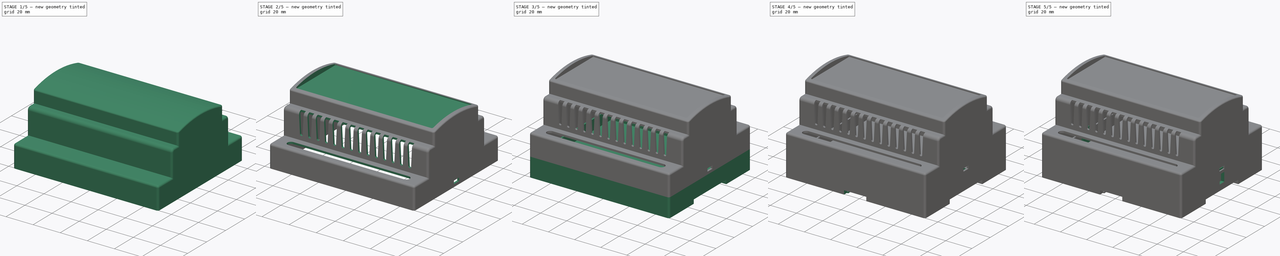
[diagram: build sequence overview — one tinted view per stage of 5, left to right]
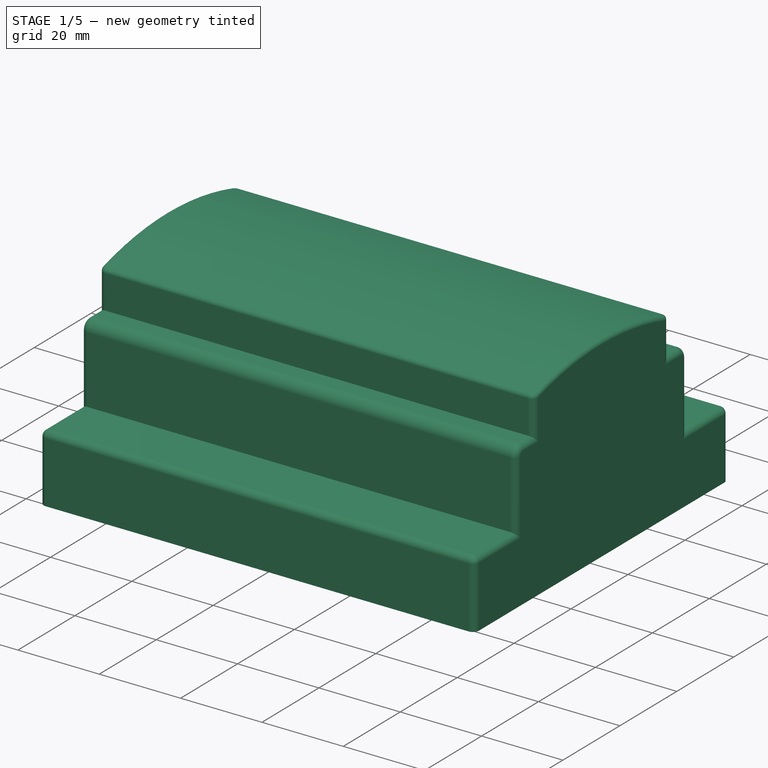
[diagram: stage 1 of 5 — iso view after this stage's code; geometry added in this stage tinted green]
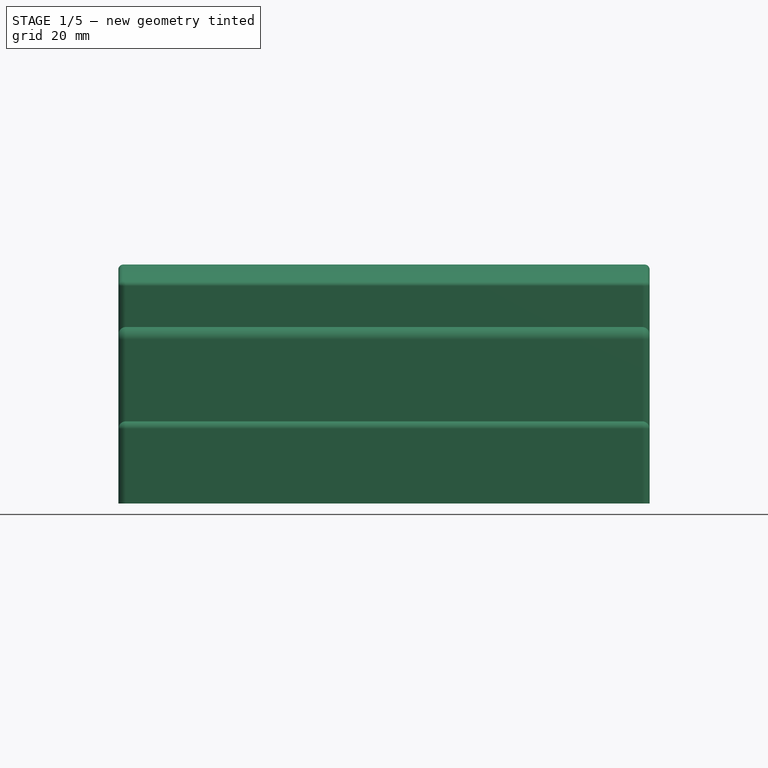
[diagram: stage 1 of 5 — front view after this stage's code; geometry added in this stage tinted green]
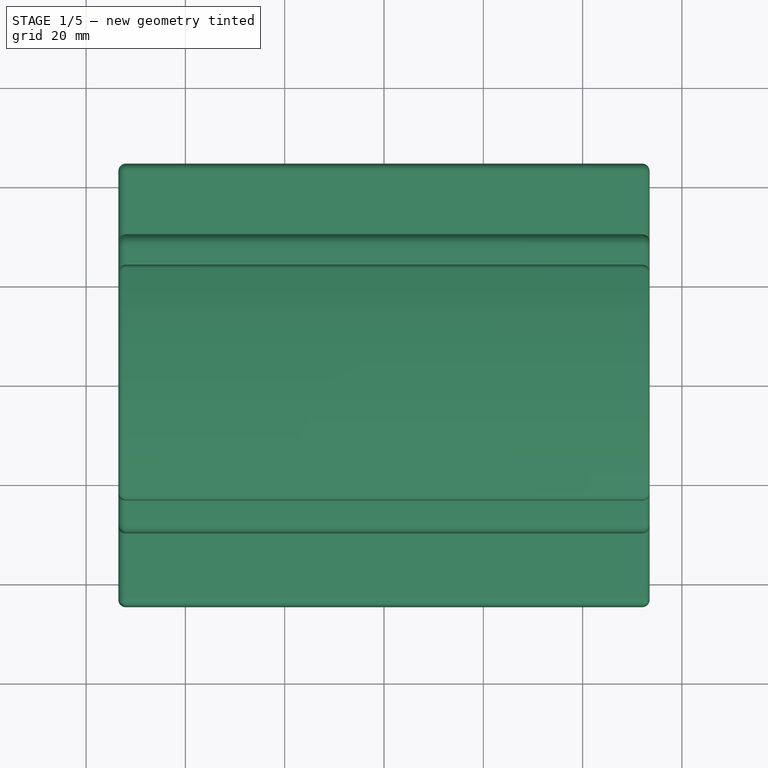
[diagram: stage 1 of 5 — top view after this stage's code; geometry added in this stage tinted green]
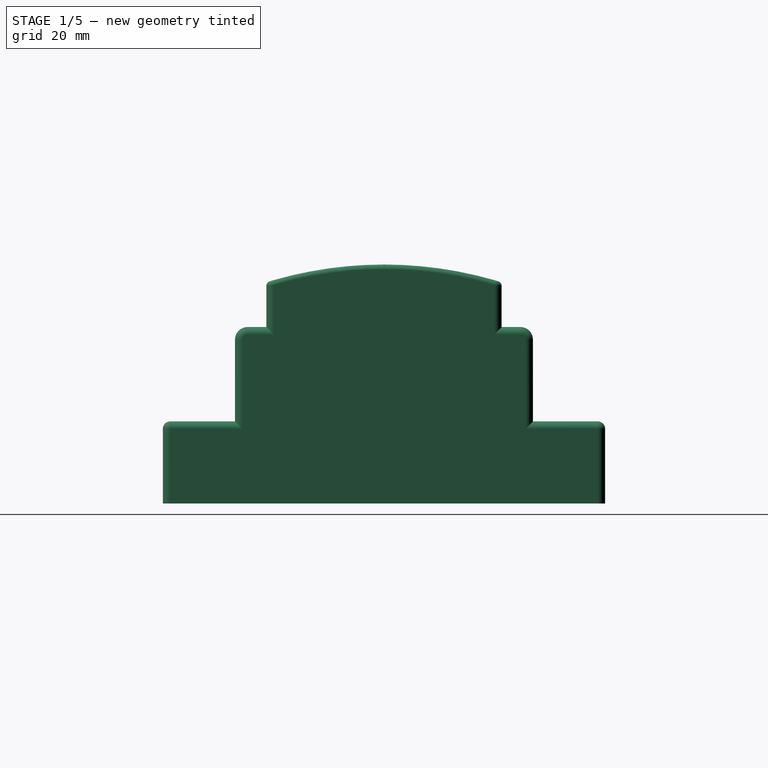
[diagram: stage 1 of 5 — right view after this stage's code; geometry added in this stage tinted green]
FCSTD DOCUMENT  (FreeCAD 1.0R39109 (Git))
Label: Practica Freecad
License: All rights reserved
LicenseURL: https://en.wikipedia.org/wiki/All_rights_reserved
objects: Sketcher::SketchObject×21, PartDesign::Pocket×14, PartDesign::Pad×7, PartDesign::Fillet×5, PartDesign::MultiTransform×4, PartDesign::Mirrored×2, PartDesign::Body×2, PartDesign::Thickness×1, PartDesign::LinearPattern×1
note: 139 computed .brp shape members not serialized (recipe doc carries the construction recipe); baked Part::Feature solids carry a one-line shape summary decoded from their .brp

FEATURE [Sketcher::SketchObject] Sketch
  ArcFitTolerance = 1e-06
  AttachmentSupport = -> [YZ_Plane]
  FullyConstrained = true
  MakeInternals = false
  MapMode = 5
  Placement = pos=(0,0,0) rot=(0.57735,0.57735,0.57735;2.0944rad)
  sketch-geometry (14):
    g0: LineSegment StartX=0 StartY=43.14 StartZ=0 EndX=22.3 EndY=43.14 EndZ=0
    g1: LineSegment StartX=22.3 StartY=43.14 StartZ=0 EndX=22.3 EndY=34.14 EndZ=0
    g2: LineSegment StartX=22.3 StartY=34.14 StartZ=0 EndX=28.6 EndY=34.14 EndZ=0
    g3: LineSegment StartX=28.6 StartY=34.14 StartZ=0 EndX=28.6 EndY=15.14 EndZ=0
    g4: LineSegment StartX=28.6 StartY=15.14 StartZ=0 EndX=43.15 EndY=15.14 EndZ=0
    g5: LineSegment StartX=43.15 StartY=15.14 StartZ=0 EndX=43.15 EndY=0 EndZ=0
    g6: LineSegment StartX=43.15 StartY=0 StartZ=0 EndX=0 EndY=0 EndZ=0
    g7: LineSegment StartX=0 StartY=43.14 StartZ=0 EndX=-22.3 EndY=43.14 EndZ=0
    g8: LineSegment StartX=-22.3 StartY=43.14 StartZ=0 EndX=-22.3 EndY=34.14 EndZ=0
    g9: LineSegment StartX=-22.3 StartY=34.14 StartZ=0 EndX=-28.6 EndY=34.14 EndZ=0
    g10: LineSegment StartX=-28.6 StartY=34.14 StartZ=0 EndX=-28.6 EndY=15.14 EndZ=0
    g11: LineSegment StartX=-28.6 StartY=15.14 StartZ=0 EndX=-43.15 EndY=15.14 EndZ=0
    g12: LineSegment StartX=-43.15 StartY=15.14 StartZ=0 EndX=-43.15 EndY=0 EndZ=0
    g13: LineSegment StartX=-43.15 StartY=0 StartZ=0 EndX=0 EndY=0 EndZ=0
  constraints (35):
    c: PointOnObject(g0,g-2)
    c: Horizontal(g0)
    c: Coincident(g0,g1)
    c: Vertical(g1)
    c: Coincident(g1,g2)
    c: Horizontal(g2)
    c: Coincident(g2,g3)
    c: Vertical(g3)
    c: Coincident(g3,g4)
    c: Horizontal(g4)
    c: Coincident(g4,g5)
    c: PointOnObject(g5,g-1)
    c: Vertical(g5)
    c: Coincident(g5,g6)
    c: Coincident(g6,g-1)
    c: DistanceY(g5,g5) = 15.14
    c: DistanceY(g-1,g2) = 34.14
    c: DistanceY(g-1,g0) = 43.14
    c: DistanceX(g-1,g1) = 22.3
    c: DistanceX(g-1,g3) = 28.6
    c: DistanceX(g-1,g4) = 43.15
    c: Symmetric(g0,g7,g-2)
    c: Symmetric(g1,g8,g-2)
    c: Symmetric(g1,g8,g-2)
    c: Symmetric(g2,g9,g-2)
    c: Symmetric(g2,g9,g-2)
    c: Symmetric(g3,g10,g-2)
    c: Symmetric(g3,g10,g-2)
    c: Symmetric(g4,g11,g-2)
    c: Symmetric(g4,g11,g-2)
    c: Symmetric(g5,g12,g-2)
    c: Symmetric(g5,g12,g-2)
    c: Symmetric(g6,g13,g-2)
    c: Coincident(g7,g0)
    c: Coincident(g13,g6)
FEATURE [PartDesign::Pad] Pad
  Direction = (1,0,0)
  Length = 104.2
  Length2 = 10
  Midplane = true
  Placement = pos=(0,0,0) rot=(1,1,1;2.0944rad)
  Profile = -> Sketch
  ReferenceAxis = -> Sketch [N_Axis]
  Refine = true
  Suppressed = false
  Type = 0
FEATURE [PartDesign::Thickness] Thickness
  Base = -> Pad [Face14]
  BaseFeature = -> Pad
  Intersection = false
  Join = 1
  Mode = 0
  Refine = true
  SupportTransform = false
  Suppressed = false
  Value = 1.4
FEATURE [Sketcher::SketchObject] Sketch001
  ArcFitTolerance = 1e-06
  AttachmentSupport = -> [Thickness]
  ExternalGeometry = -> [Thickness]
  FullyConstrained = true
  MakeInternals = false
  MapMode = 5
  Placement = pos=(53.5,0,0) rot=(0.57735,0.57735,0.57735;2.0944rad)
  sketch-geometry (2):
    g0: ArcOfCircle CenterX=-1.77e-14 CenterY=-31.8688 CenterZ=0 NormalX=0 NormalY=0 NormalZ=1 AngleXU=0 Radius=80 StartAngle=1.27003 EndAngle=1.87156
    g1: LineSegment StartX=23.7 StartY=44.54 StartZ=0 EndX=-23.7 EndY=44.54 EndZ=0
  constraints (5):
    c: Coincident(g0,g-4)
    c: Coincident(g0,g-3)
    c: Coincident(g1,g0)
    c: Coincident(g1,g0)
    c: Radius(g0) = 80
FEATURE [PartDesign::Pad] Pad001
  BaseFeature = -> Thickness
  Direction = (1,0,0)
  Length = 13
  Length2 = 10
  Profile = -> Sketch001
  ReferenceAxis = -> Sketch001 [N_Axis]
  Refine = true
  Suppressed = false
  Type = 3
  UpToFace = -> Thickness [Face20]
FEATURE [PartDesign::Fillet] Fillet
  Base = -> Pad001 [Edge6,Edge63]
  BaseFeature = -> Pad001
  Radius = 2.5
  Refine = true
  SupportTransform = false
  Suppressed = false
  UseAllEdges = false
FEATURE [PartDesign::Fillet] Fillet001
  Base = -> Fillet [Edge45,Edge35,Edge7,Edge10,Edge1,Edge5,Edge6,Edge12,Edge14,Edge16,Edge17,Edge15,Edge9,Edge11,Edge27,Edge29,Edge31,Edge32,Edge30,Edge28,Edge21,Edge4,Edge19,Edge22,Edge23,Edge24]
  BaseFeature = -> Fillet
  Radius = 1.5
  Refine = true
  SupportTransform = false
  Suppressed = false
  UseAllEdges = false
FEATURE [PartDesign::Fillet] Fillet002
  Base = -> Fillet001 [Edge14]
  BaseFeature = -> Fillet001
  Radius = 1
  Refine = true
  SupportTransform = false
  Suppressed = false
  UseAllEdges = false
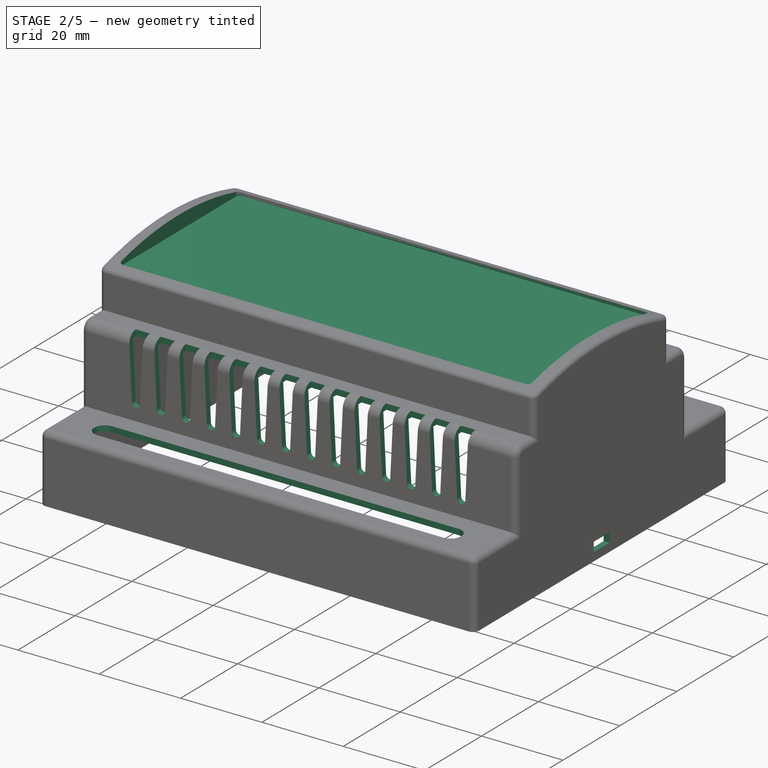
[diagram: stage 2 of 5 — iso view after this stage's code; geometry added in this stage tinted green]
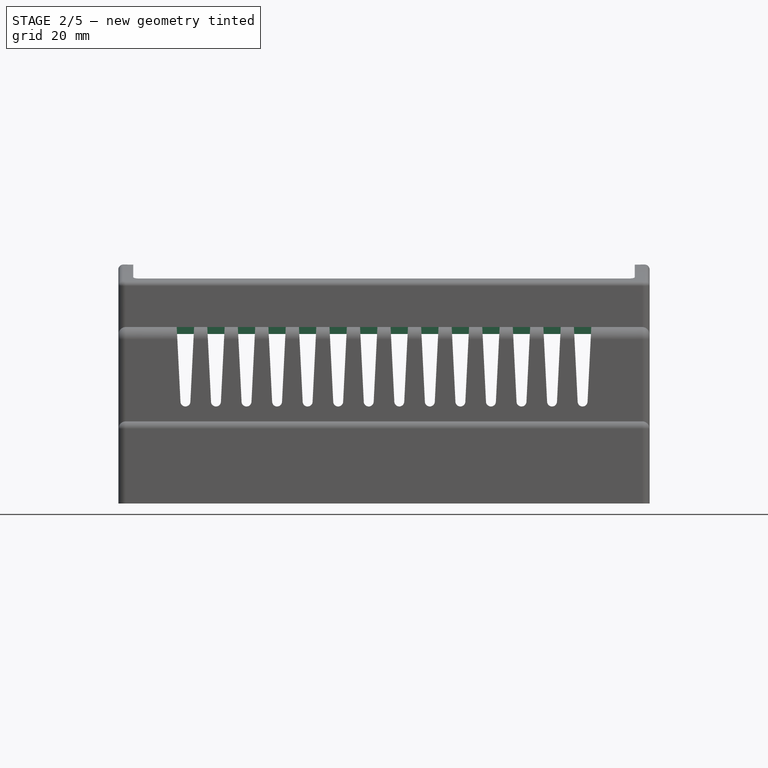
[diagram: stage 2 of 5 — front view after this stage's code; geometry added in this stage tinted green]
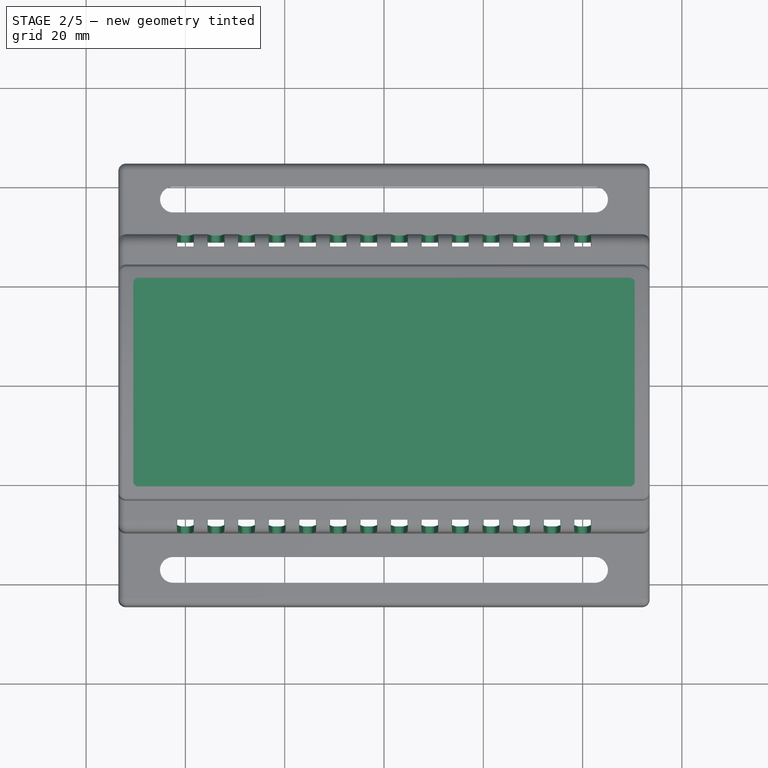
[diagram: stage 2 of 5 — top view after this stage's code; geometry added in this stage tinted green]
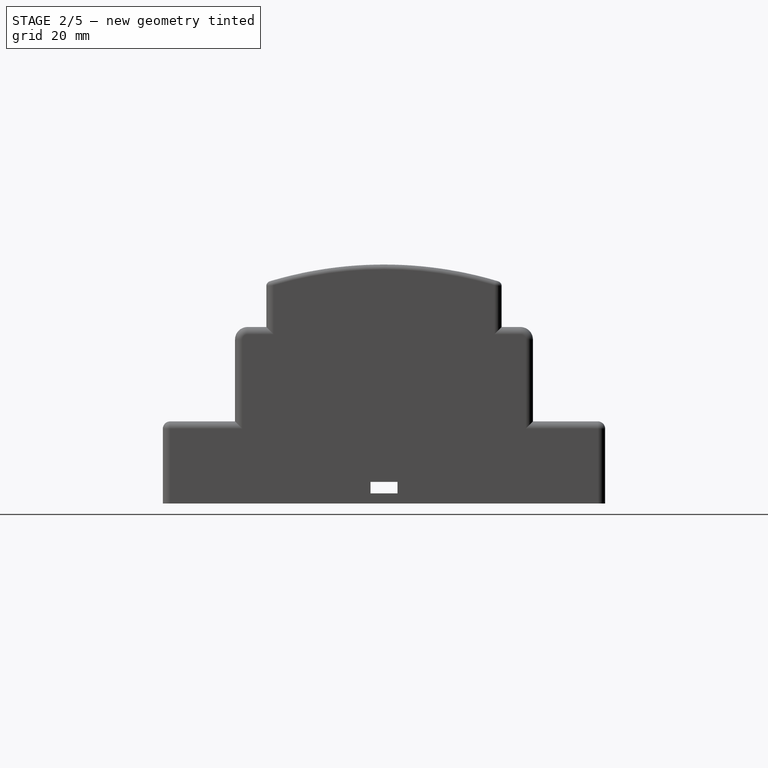
[diagram: stage 2 of 5 — right view after this stage's code; geometry added in this stage tinted green]
FEATURE [Sketcher::SketchObject] Sketch002
  ArcFitTolerance = 1e-06
  AttachmentOffset = pos=(0,0,44.54) rot=(0,0,1;0rad)
  AttachmentSupport = -> [XY_Plane]
  FullyConstrained = true
  MakeInternals = false
  MapMode = 5
  Placement = pos=(0,0,44.54) rot=(0,0,1;0rad)
  sketch-geometry (5):
    g0: LineSegment StartX=-50.5 StartY=21 StartZ=0 EndX=-50.5 EndY=-21 EndZ=0
    g1: LineSegment StartX=-50.5 StartY=-21 StartZ=0 EndX=50.5 EndY=-21 EndZ=0
    g2: LineSegment StartX=50.5 StartY=-21 StartZ=0 EndX=50.5 EndY=21 EndZ=0
    g3: LineSegment StartX=50.5 StartY=21 StartZ=0 EndX=-50.5 EndY=21 EndZ=0
    g4: GeomPoint [constr] X=0 Y=-8e-16 Z=0
  constraints (11):
    c: Coincident(g0,g1)
    c: Coincident(g1,g2)
    c: Coincident(g2,g3)
    c: Coincident(g3,g0)
    c: Vertical(g0)
    c: Horizontal(g1)
    c: Symmetric(g2,g0,g4)
    c: DistanceY(g2,g2) = 42
    c: DistanceX(g3,g3) = 101
    c: Symmetric(g2,g1,g-1)
    c: Symmetric(g2,g0,g-2)
FEATURE [PartDesign::Pocket] Pocket
  BaseFeature = -> Fillet002
  Direction = (0,0,-1)
  Length = 0
  Length2 = 5
  Profile = -> Sketch002
  ReferenceAxis = -> Sketch002 [N_Axis]
  Refine = true
  Suppressed = false
  Type = 3
  UpToFace = -> Fillet002 [Face9]
FEATURE [PartDesign::Fillet] Fillet003
  Base = -> Pocket [Edge111,Edge110,Edge115,Edge113]
  BaseFeature = -> Pocket
  Radius = 1
  Refine = true
  SupportTransform = false
  Suppressed = false
  UseAllEdges = false
FEATURE [Sketcher::SketchObject] Sketch003
  ArcFitTolerance = 1e-06
  AttachmentSupport = -> [Fillet003]
  FullyConstrained = false
  MakeInternals = false
  MapMode = 5
  Placement = pos=(0,3.6e-15,16.54) rot=(0,0,1;0rad)
  sketch-geometry (8):
    g0: ArcOfCircle CenterX=-42.5 CenterY=37.3 CenterZ=0 NormalX=0 NormalY=0 NormalZ=1 AngleXU=0 Radius=2.6 StartAngle=1.5708 EndAngle=4.71239
    g1: ArcOfCircle CenterX=42.5 CenterY=37.3 CenterZ=0 NormalX=0 NormalY=0 NormalZ=1 AngleXU=0 Radius=2.6 StartAngle=4.71239 EndAngle=7.85398
    g2: LineSegment StartX=-42.5 StartY=39.9 StartZ=0 EndX=42.5 EndY=39.9 EndZ=0
    g3: LineSegment StartX=-42.5 StartY=34.7 StartZ=0 EndX=42.5 EndY=34.7 EndZ=0
    g4: ArcOfCircle CenterX=-42.5147 CenterY=-37.3 CenterZ=0 NormalX=0 NormalY=0 NormalZ=1 AngleXU=0 Radius=2.6 StartAngle=1.5708 EndAngle=4.71239
    g5: ArcOfCircle CenterX=42.5 CenterY=-37.3 CenterZ=0 NormalX=0 NormalY=0 NormalZ=1 AngleXU=0 Radius=2.6 StartAngle=4.71239 EndAngle=7.85398
    g6: LineSegment StartX=-42.5147 StartY=-39.9 StartZ=0 EndX=42.5 EndY=-39.9 EndZ=0
    g7: LineSegment StartX=-42.5147 StartY=-34.7 StartZ=0 EndX=42.5 EndY=-34.7 EndZ=0
  constraints (17):
    c: Tangent(g0,g2) = 1.5708
    c: Tangent(g0,g3) = -1.5708
    c: Tangent(g1,g2) = 1.5708
    c: Tangent(g1,g3) = -1.5708
    c: Equal(g0,g1)
    c: Symmetric(g0,g1,g-2)
    c: DistanceX(g0,g1) = 85
    c: Distance(g3,g2) = 5.2
    c: Tangent(g4,g6) = -1.5708
    c: Tangent(g4,g7) = 1.5708
    c: Tangent(g5,g6) = -1.5708
    c: Tangent(g5,g7) = 1.5708
    c: Equal(g4,g5)
    c: Distance(g7,g6) = 5.2
    c: Horizontal(g4,g5)
    c: Symmetric(g5,g1,g-1)
    c: DistanceY(g5,g1) = 74.6
FEATURE [PartDesign::Pocket] Pocket001
  BaseFeature = -> Fillet003
  Direction = (0,0,-1)
  Length = 5
  Length2 = 5
  Profile = -> Sketch003
  ReferenceAxis = -> Sketch003 [N_Axis]
  Refine = true
  Suppressed = false
  Type = 0
FEATURE [Sketcher::SketchObject] Sketch004
  ArcFitTolerance = 1e-06
  AttachmentSupport = -> [Pocket001]
  ExternalGeometry = -> [Pocket001]
  FullyConstrained = false
  MakeInternals = false
  MapMode = 5
  Placement = pos=(-6.6e-15,-30,0) rot=(1,0,0;1.5708rad)
  sketch-geometry (5):
    g0: LineSegment [constr] StartX=40 StartY=20.54 StartZ=0 EndX=40 EndY=35.54 EndZ=0
    g1: LineSegment StartX=39.0004 StartY=20.5685 StartZ=0 EndX=38.25 EndY=35.54 EndZ=0
    g2: LineSegment StartX=38.25 StartY=35.54 StartZ=0 EndX=41.75 EndY=35.54 EndZ=0
    g3: LineSegment StartX=41.75 StartY=35.54 StartZ=0 EndX=40.999 EndY=20.4961 EndZ=0
    g4: ArcOfCircle CenterX=40 CenterY=20.54 CenterZ=0 NormalX=0 NormalY=0 NormalZ=1 AngleXU=0 Radius=1 StartAngle=3.11304 EndAngle=6.23922
  constraints (13):
    c: Vertical(g0)
    c: Coincident(g1,g2)
    c: Coincident(g2,g3)
    c: Coincident(g4,g0)
    c: Coincident(g4,g3)
    c: Coincident(g4,g1)
    c: Symmetric(g2,g1,g0)
    c: PointOnObject(g0,g2)
    c: PointOnObject(g1,g-3)
    c: Distance(g1,g-2) = 38.25
    c: DistanceX(g2,g2) = 3.5
    c: Radius(g4) = 1
    c: Distance(g0,g-3) = 15
FEATURE [PartDesign::Pocket] Pocket002
  BaseFeature = -> Pocket001
  Direction = (0,1,-2e-16)
  Length = 2.5
  Length2 = 5
  Profile = -> Sketch004
  ReferenceAxis = -> Sketch004 [N_Axis]
  Refine = true
  Suppressed = false
  Type = 0
FEATURE [PartDesign::LinearPattern] LinearPattern
  Direction = -> Sketch004 [H_Axis]
  Length = 80
  Mode = 0
  Occurrences = 14
  Offset = 6.15385
  Refine = true
  Reversed = true
  Suppressed = false
  TransformMode = 0
FEATURE [PartDesign::Mirrored] Mirrored
  MirrorPlane = -> XZ_Plane
  Refine = true
  Suppressed = false
  TransformMode = 0
FEATURE [PartDesign::MultiTransform] MultiTransform
  BaseFeature = -> Pocket002
  Originals = -> [Pocket002]
  Refine = true
  Suppressed = false
  TransformMode = 0
  Transformations = -> [LinearPattern,Mirrored]
FEATURE [PartDesign::Body] Body001
  AllowCompound = false
  Group = -> [Sketch005,Pad002,Sketch006,Pocket003,Sketch007,Pad003,Fillet004,Sketch008,Pocket004,Sketch009,Pocket005,Sketch010,Pocket006,Sketch011,Pocket007,Sketch012,Pocket008,Sketch013,Pocket009,Sketch014,Pocket010,Sketch015,Pocket011,Sketch016,Pad004,Sketch017,Pocket012,Sketch018,Pad005,MultiTransform001,MultiTransform002,Mirrored001,Sketch019,Pad006,MultiTransform003]
  Origin = -> Origin001
  Tip = -> MultiTransform003
FEATURE [Sketcher::SketchObject] Sketch020
  ArcFitTolerance = 1e-06
  AttachmentSupport = -> [MultiTransform]
  FullyConstrained = true
  MakeInternals = false
  MapMode = 5
  Placement = pos=(53.5,0,0) rot=(0.57735,0.57735,0.57735;2.0944rad)
  sketch-geometry (4):
    g0: LineSegment StartX=-2.73 StartY=4.36 StartZ=0 EndX=-2.73 EndY=2.04 EndZ=0
    g1: LineSegment StartX=-2.73 StartY=2.04 StartZ=0 EndX=2.73 EndY=2.04 EndZ=0
    g2: LineSegment StartX=2.73 StartY=2.04 StartZ=0 EndX=2.73 EndY=4.36 EndZ=0
    g3: LineSegment StartX=2.73 StartY=4.36 StartZ=0 EndX=-2.73 EndY=4.36 EndZ=0
  constraints (11):
    c: Coincident(g0,g1)
    c: Coincident(g1,g2)
    c: Coincident(g2,g3)
    c: Coincident(g3,g0)
    c: Vertical(g0)
    c: Vertical(g2)
    c: Horizontal(g1)
    c: DistanceY(g0,g0) = 2.32
    c: DistanceX(g3,g3) = 5.46
    c: Distance(g-1,g3) = 4.36
    c: Symmetric(g0,g2,g-2)
FEATURE [PartDesign::Pocket] Pocket013
  BaseFeature = -> MultiTransform
  Direction = (-1,0,0)
  Length = 200
  Length2 = 5
  Profile = -> Sketch020
  ReferenceAxis = -> Sketch020 [N_Axis]
  Refine = true
  Suppressed = false
  Type = 0
FEATURE [PartDesign::Body] Body
  AllowCompound = false
  Group = -> [Sketch,Pad,Thickness,Sketch001,Pad001,Fillet,Fillet001,Fillet002,Sketch002,Pocket,Fillet003,Sketch003,Pocket001,Sketch004,Pocket002,MultiTransform,LinearPattern,Mirrored,Sketch020,Pocket013]
  Origin = -> Origin
  Tip = -> Pocket013
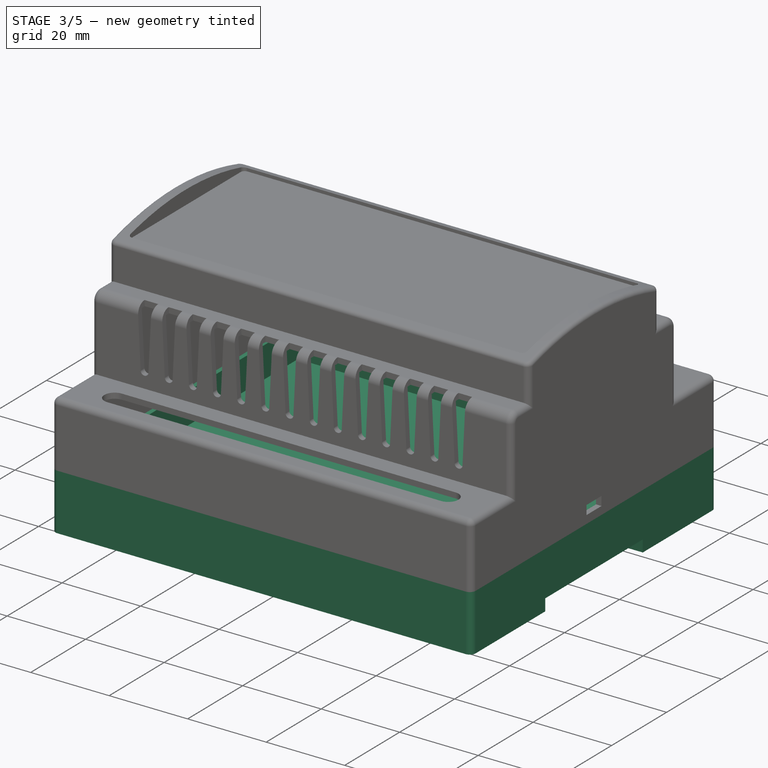
[diagram: stage 3 of 5 — iso view after this stage's code; geometry added in this stage tinted green]
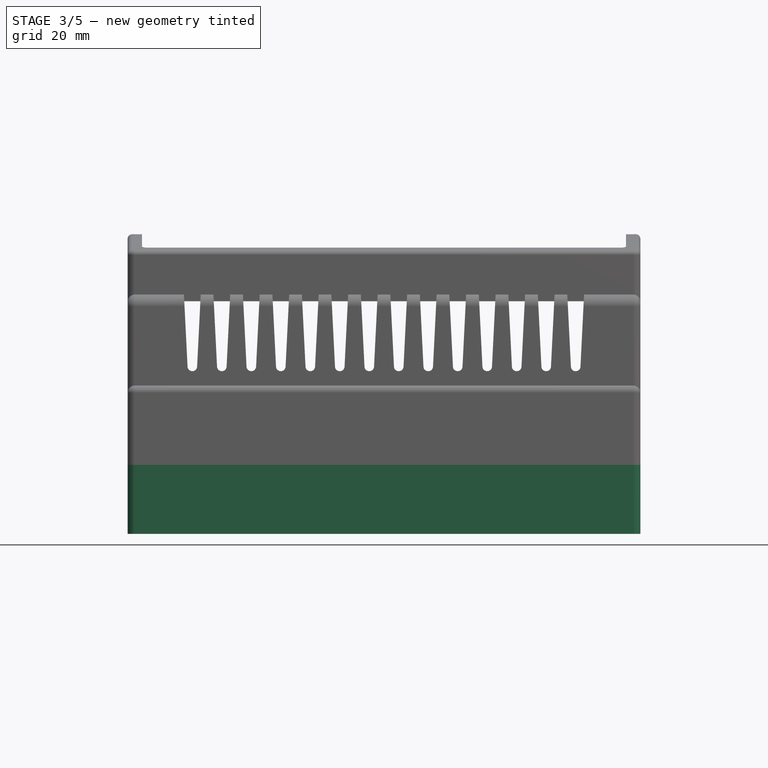
[diagram: stage 3 of 5 — front view after this stage's code; geometry added in this stage tinted green]
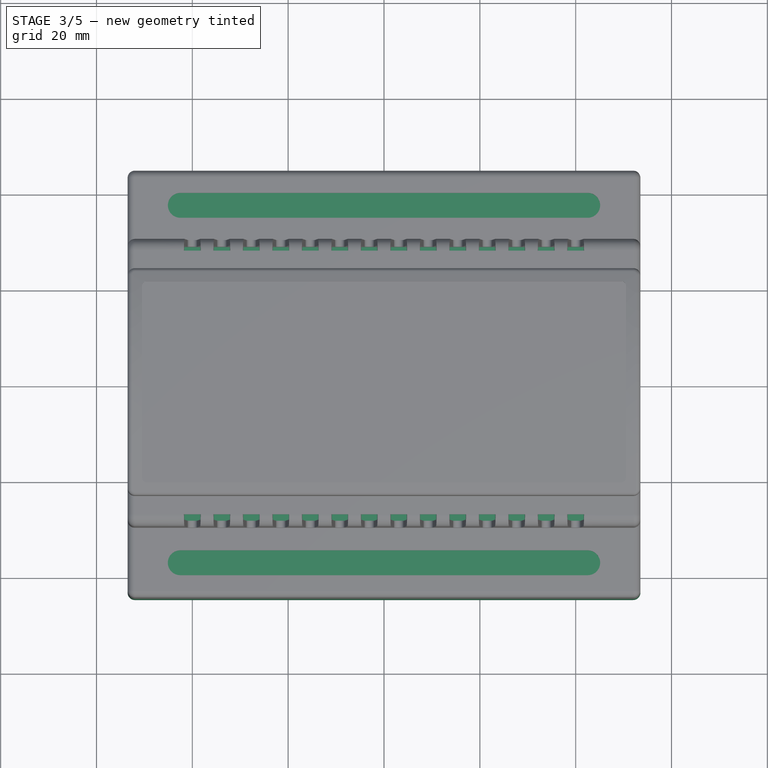
[diagram: stage 3 of 5 — top view after this stage's code; geometry added in this stage tinted green]
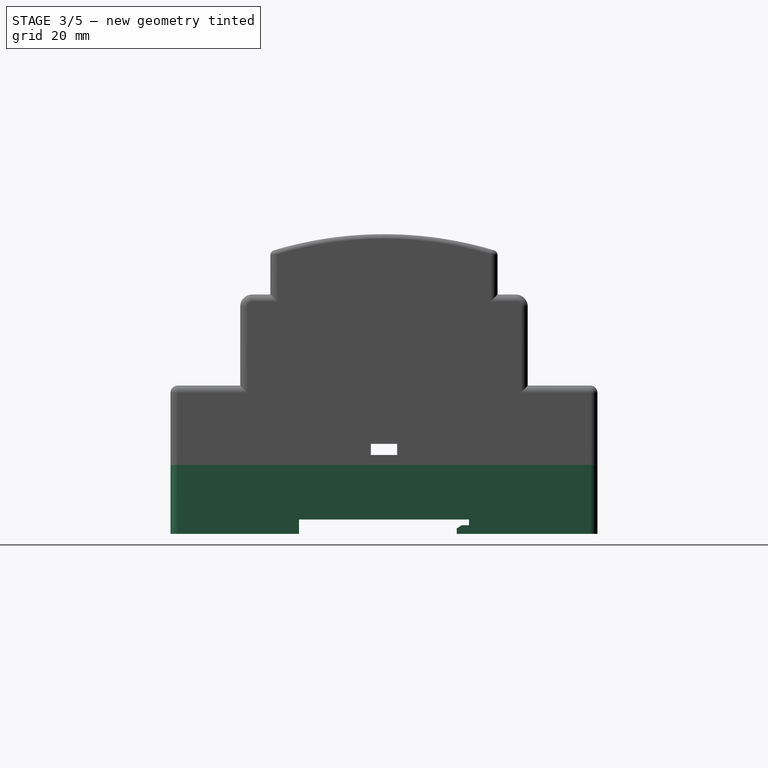
[diagram: stage 3 of 5 — right view after this stage's code; geometry added in this stage tinted green]
FEATURE [Sketcher::SketchObject] Sketch005
  ArcFitTolerance = 1e-06
  AttachmentSupport = -> [XY_Plane001]
  FullyConstrained = true
  MakeInternals = false
  MapMode = 5
  sketch-geometry (5):
    g0: LineSegment StartX=-53.5 StartY=-44.55 StartZ=0 EndX=53.5 EndY=-44.55 EndZ=0
    g1: LineSegment StartX=53.5 StartY=-44.55 StartZ=0 EndX=53.5 EndY=44.55 EndZ=0
    g2: LineSegment StartX=53.5 StartY=44.55 StartZ=0 EndX=-53.5 EndY=44.55 EndZ=0
    g3: LineSegment StartX=-53.5 StartY=44.55 StartZ=0 EndX=-53.5 EndY=-44.55 EndZ=0
    g4: GeomPoint [constr] X=0 Y=0 Z=0
  constraints (12):
    c: Coincident(g0,g1)
    c: Coincident(g1,g2)
    c: Coincident(g2,g3)
    c: Coincident(g3,g0)
    c: Horizontal(g0)
    c: Horizontal(g2)
    c: Vertical(g1)
    c: Vertical(g3)
    c: Symmetric(g2,g0,g4)
    c: Coincident(g4,g-1)
    c: DistanceX(g0,g0) = 107
    c: DistanceY(g1,g1) = 89.1
FEATURE [PartDesign::Pad] Pad002
  Direction = (0,0,1)
  Length = 14.4
  Length2 = 10
  Profile = -> Sketch005
  ReferenceAxis = -> Sketch005 [N_Axis]
  Refine = true
  Reversed = true
  Suppressed = false
  Type = 0
FEATURE [Sketcher::SketchObject] Sketch006
  ArcFitTolerance = 1e-06
  AttachmentSupport = -> [Pad002]
  FullyConstrained = true
  MakeInternals = false
  MapMode = 5
  sketch-geometry (5):
    g0: LineSegment StartX=-51 StartY=-41.5 StartZ=0 EndX=51 EndY=-41.5 EndZ=0
    g1: LineSegment StartX=51 StartY=-41.5 StartZ=0 EndX=51 EndY=41.5 EndZ=0
    g2: LineSegment StartX=51 StartY=41.5 StartZ=0 EndX=-51 EndY=41.5 EndZ=0
    g3: LineSegment StartX=-51 StartY=41.5 StartZ=0 EndX=-51 EndY=-41.5 EndZ=0
    g4: GeomPoint [constr] X=0 Y=0 Z=0
  constraints (12):
    c: Coincident(g0,g1)
    c: Coincident(g1,g2)
    c: Coincident(g2,g3)
    c: Coincident(g3,g0)
    c: Horizontal(g0)
    c: Horizontal(g2)
    c: Vertical(g1)
    c: Vertical(g3)
    c: Symmetric(g2,g0,g4)
    c: Distance(g1,g3) = 102
    c: Distance(g0,g2) = 83
    c: Coincident(g4,g-1)
FEATURE [PartDesign::Pocket] Pocket003
  BaseFeature = -> Pad002
  Direction = (0,0,-1)
  Length = 6.9
  Length2 = 5
  Profile = -> Sketch006
  ReferenceAxis = -> Sketch006 [N_Axis]
  Refine = true
  Suppressed = false
  Type = 0
FEATURE [Sketcher::SketchObject] Sketch007
  ArcFitTolerance = 1e-06
  AttachmentSupport = -> [Pocket003]
  ExternalGeometry = -> [Pocket003]
  FullyConstrained = true
  MakeInternals = false
  MapMode = 5
  sketch-geometry (10):
    g0: GeomPoint [constr] X=0 Y=0 Z=0
    g1: LineSegment StartX=-52.1 StartY=-43.15 StartZ=0 EndX=52.1 EndY=-43.15 EndZ=0
    g2: LineSegment StartX=52.1 StartY=-43.15 StartZ=0 EndX=52.1 EndY=43.15 EndZ=0
    g3: LineSegment StartX=52.1 StartY=43.15 StartZ=0 EndX=-52.1 EndY=43.15 EndZ=0
    g4: LineSegment StartX=-52.1 StartY=43.15 StartZ=0 EndX=-52.1 EndY=-43.15 EndZ=0
    g5: LineSegment StartX=51 StartY=-41.5 StartZ=0 EndX=51 EndY=41.5 EndZ=0
    g6: LineSegment StartX=51 StartY=41.5 StartZ=0 EndX=-51 EndY=41.5 EndZ=0
    g7: LineSegment StartX=-51 StartY=41.5 StartZ=0 EndX=-51 EndY=-41.5 EndZ=0
    g8: LineSegment StartX=-51 StartY=-41.5 StartZ=0 EndX=51 EndY=-41.5 EndZ=0
    g9: GeomPoint [constr] X=0 Y=0 Z=0
  constraints (24):
    c: Coincident(g0,g-1)
    c: Coincident(g1,g2)
    c: Coincident(g1,g4)
    c: Coincident(g2,g3)
    c: Coincident(g3,g4)
    c: Coincident(g5,g6)
    c: Coincident(g6,g7)
    c: Coincident(g7,g8)
    c: Coincident(g8,g5)
    c: Vertical(g5)
    c: Vertical(g7)
    c: Horizontal(g6)
    c: Horizontal(g8)
    c: Symmetric(g7,g5,g9)
    c: Coincident(g9,g0)
    c: Coincident(g6,g-3)
    c: Vertical(g4)
    c: Horizontal(g3)
    c: Horizontal(g1)
    c: Vertical(g2)
    c: Distance(g6,g3) = 1.65
    c: Distance(g7,g4) = 1.1
    c: Distance(g1,g8) = 1.65
    c: Distance(g5,g2) = 1.1
FEATURE [PartDesign::Pad] Pad003
  BaseFeature = -> Pocket003
  Direction = (0,0,1)
  Length = 1
  Length2 = 10
  Profile = -> Sketch007
  ReferenceAxis = -> Sketch007 [N_Axis]
  Refine = true
  Suppressed = false
  Type = 0
FEATURE [PartDesign::Fillet] Fillet004
  Base = -> Pad003 [Edge1,Edge5,Edge2,Edge8]
  BaseFeature = -> Pad003
  Radius = 1.5
  Refine = true
  SupportTransform = false
  Suppressed = false
  UseAllEdges = false
FEATURE [Sketcher::SketchObject] Sketch008
  ArcFitTolerance = 1e-06
  AttachmentSupport = -> [Fillet004]
  ExternalGeometry = -> [Fillet004]
  FullyConstrained = true
  MakeInternals = false
  MapMode = 5
  Placement = pos=(53.5,0,0) rot=(0.57735,0.57735,0.57735;2.0944rad)
  sketch-geometry (9):
    g0: LineSegment StartX=-17.75 StartY=-11.4 StartZ=0 EndX=0 EndY=-11.4 EndZ=0
    g1: LineSegment StartX=-17.75 StartY=-14.4 StartZ=0 EndX=0 EndY=-14.4 EndZ=0
    g2: LineSegment StartX=17.75 StartY=-11.4 StartZ=0 EndX=17.75 EndY=-12.6 EndZ=0
    g3: LineSegment StartX=16.25 StartY=-12.6 StartZ=0 EndX=15.18 EndY=-13.26 EndZ=0
    g4: LineSegment StartX=15.18 StartY=-13.26 StartZ=0 EndX=15.18 EndY=-14.4 EndZ=0
    g5: LineSegment StartX=17.75 StartY=-11.4 StartZ=0 EndX=0 EndY=-11.4 EndZ=0
    g6: LineSegment StartX=15.18 StartY=-14.4 StartZ=0 EndX=0 EndY=-14.4 EndZ=0
    g7: LineSegment StartX=-17.75 StartY=-14.4 StartZ=0 EndX=-17.75 EndY=-11.4 EndZ=0
    g8: LineSegment StartX=17.75 StartY=-12.6 StartZ=0 EndX=16.25 EndY=-12.6 EndZ=0
  constraints (25):
    c: PointOnObject(g1,g-3)
    c: PointOnObject(g0,g-2)
    c: Horizontal(g0)
    c: Symmetric(g-3,g-3,g1)
    c: Vertical(g2)
    c: Vertical(g4)
    c: DistanceX(g0,g2) = 35.5
    c: Vertical(g7)
    c: DistanceY(g7,g7) = 3
    c: DistanceY(g2,g2) = 1.2
    c: Coincident(g5,g0)
    c: Horizontal(g8)
    c: DistanceX(g8,g8) = 1.5
    c: DistanceX(g3,g3) = 1.07
    c: DistanceY(g4,g4) = 1.14
    c: Coincident(g2,g8)
    c: Coincident(g2,g5)
    c: Coincident(g8,g3)
    c: Coincident(g3,g4)
    c: Coincident(g4,g6)
    c: Coincident(g0,g7)
    c: Coincident(g7,g1)
    c: Coincident(g6,g1)
    c: PointOnObject(g4,g-3)
    c: Symmetric(g2,g0,g-2)
FEATURE [PartDesign::Pocket] Pocket004
  BaseFeature = -> Fillet004
  Direction = (-1,0,0)
  Length = 5
  Length2 = 5
  Profile = -> Sketch008
  ReferenceAxis = -> Sketch008 [N_Axis]
  Refine = true
  Suppressed = false
  Type = 1
FEATURE [Sketcher::SketchObject] Sketch009
  ArcFitTolerance = 1e-06
  AttachmentSupport = -> [Pocket004]
  ExternalGeometry = -> [Pocket004]
  FullyConstrained = true
  MakeInternals = false
  MapMode = 5
  Placement = pos=(0,0,-14.4) rot=(1,0,0;3.14159rad)
  sketch-geometry (8):
    g0: LineSegment StartX=49.65 StartY=0 StartZ=0 EndX=53.5 EndY=0 EndZ=0
    g1: LineSegment StartX=53.5 StartY=0 StartZ=0 EndX=53.5 EndY=-17.75 EndZ=0
    g2: LineSegment StartX=53.5 StartY=-17.75 StartZ=0 EndX=49.65 EndY=-17.75 EndZ=0
    g3: LineSegment StartX=49.65 StartY=-17.75 StartZ=0 EndX=49.65 EndY=0 EndZ=0
    g4: LineSegment StartX=-49.65 StartY=0 StartZ=0 EndX=-53.5 EndY=0 EndZ=0
    g5: LineSegment StartX=-53.5 StartY=0 StartZ=0 EndX=-53.5 EndY=-17.75 EndZ=0
    g6: LineSegment StartX=-53.5 StartY=-17.75 StartZ=0 EndX=-49.65 EndY=-17.75 EndZ=0
    g7: LineSegment StartX=-49.65 StartY=-17.75 StartZ=0 EndX=-49.65 EndY=0 EndZ=0
  constraints (20):
    c: Coincident(g0,g1)
    c: Coincident(g2,g3)
    c: Coincident(g3,g0)
    c: Horizontal(g0)
    c: Horizontal(g2)
    c: Vertical(g1)
    c: Vertical(g3)
    c: PointOnObject(g0,g-1)
    c: DistanceX(g-1,g0) = 49.65
    c: Symmetric(g0,g4,g-2)
    c: Symmetric(g0,g4,g-2)
    c: Symmetric(g1,g5,g-2)
    c: Symmetric(g1,g5,g-2)
    c: Symmetric(g2,g6,g-2)
    c: Symmetric(g2,g6,g-2)
    c: Symmetric(g3,g7,g-2)
    c: Symmetric(g3,g7,g-2)
    c: Coincident(g2,g1)
    c: Distance(g1,g-1) = 17.75
    c: PointOnObject(g-3,g1)
FEATURE [PartDesign::Pocket] Pocket005
  BaseFeature = -> Pocket004
  Direction = (0,0,1)
  Length = 3
  Length2 = 5
  Profile = -> Sketch009
  ReferenceAxis = -> Sketch009 [N_Axis]
  Refine = true
  Suppressed = false
  Type = 0
FEATURE [Sketcher::SketchObject] Sketch010
  ArcFitTolerance = 1e-06
  AttachmentSupport = -> [Pocket005]
  ExternalGeometry = -> [Pocket005]
  FullyConstrained = true
  MakeInternals = false
  MapMode = 5
  Placement = pos=(0,0,-14.4) rot=(1,0,0;3.14159rad)
  sketch-geometry (4):
    g0: LineSegment StartX=-17.5 StartY=0 StartZ=0 EndX=-17.5 EndY=-17.75 EndZ=0
    g1: LineSegment StartX=-17.5 StartY=-17.75 StartZ=0 EndX=17.5 EndY=-17.75 EndZ=0
    g2: LineSegment StartX=17.5 StartY=-17.75 StartZ=0 EndX=17.5 EndY=0 EndZ=0
    g3: LineSegment StartX=17.5 StartY=0 StartZ=0 EndX=-17.5 EndY=0 EndZ=0
  constraints (11):
    c: Coincident(g0,g1)
    c: Coincident(g1,g2)
    c: Coincident(g2,g3)
    c: Coincident(g3,g0)
    c: Vertical(g0)
    c: Vertical(g2)
    c: Horizontal(g1)
    c: PointOnObject(g0,g-1)
    c: Symmetric(g0,g2,g-2)
    c: Horizontal(g0,g-3)
    c: DistanceX(g1,g1) = 35
FEATURE [PartDesign::Pocket] Pocket006
  BaseFeature = -> Pocket005
  Direction = (0,0,1)
  Length = 3
  Length2 = 5
  Profile = -> Sketch010
  ReferenceAxis = -> Sketch010 [N_Axis]
  Refine = true
  Suppressed = false
  Type = 0
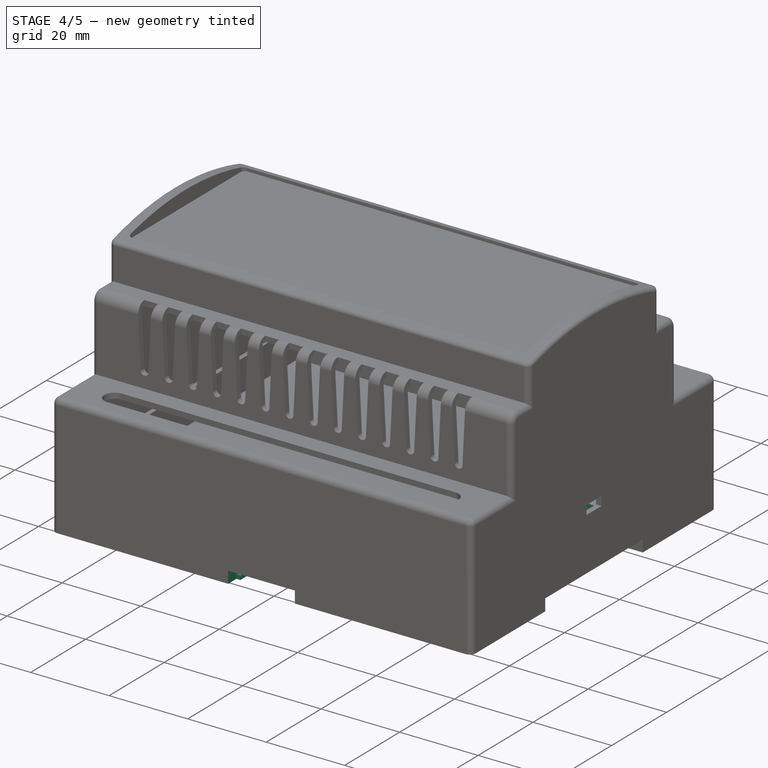
[diagram: stage 4 of 5 — iso view after this stage's code; geometry added in this stage tinted green]
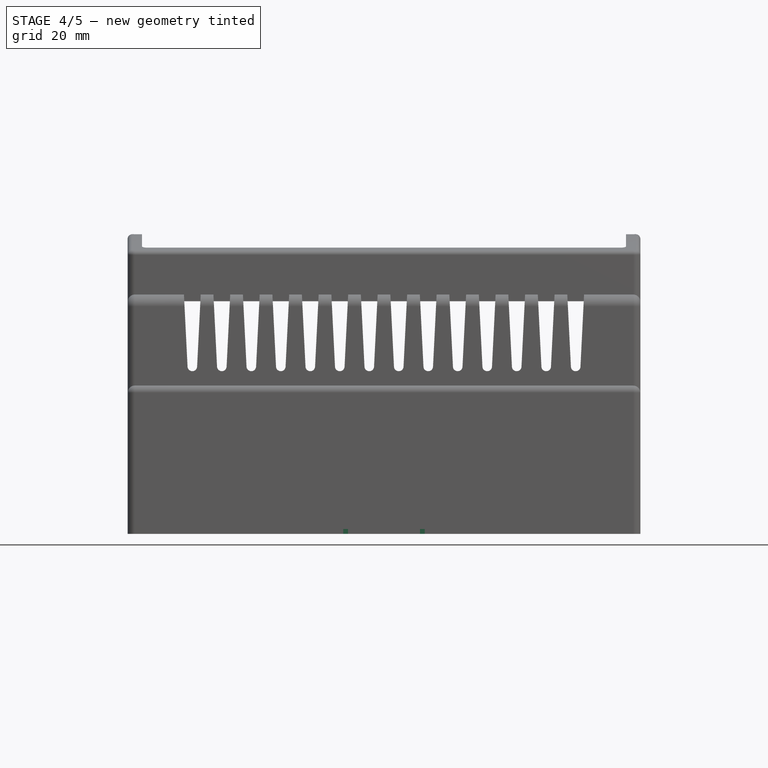
[diagram: stage 4 of 5 — front view after this stage's code; geometry added in this stage tinted green]
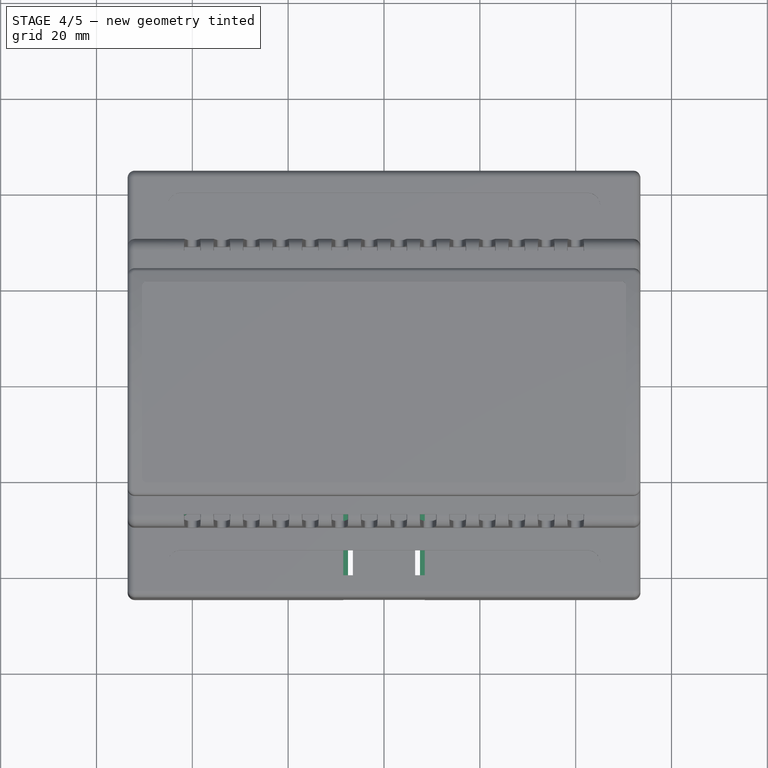
[diagram: stage 4 of 5 — top view after this stage's code; geometry added in this stage tinted green]
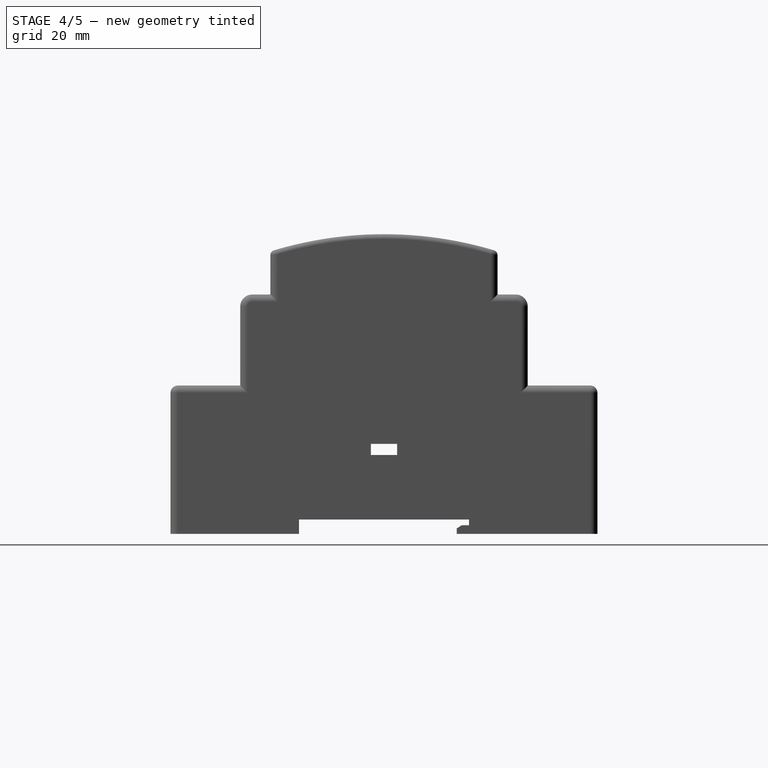
[diagram: stage 4 of 5 — right view after this stage's code; geometry added in this stage tinted green]
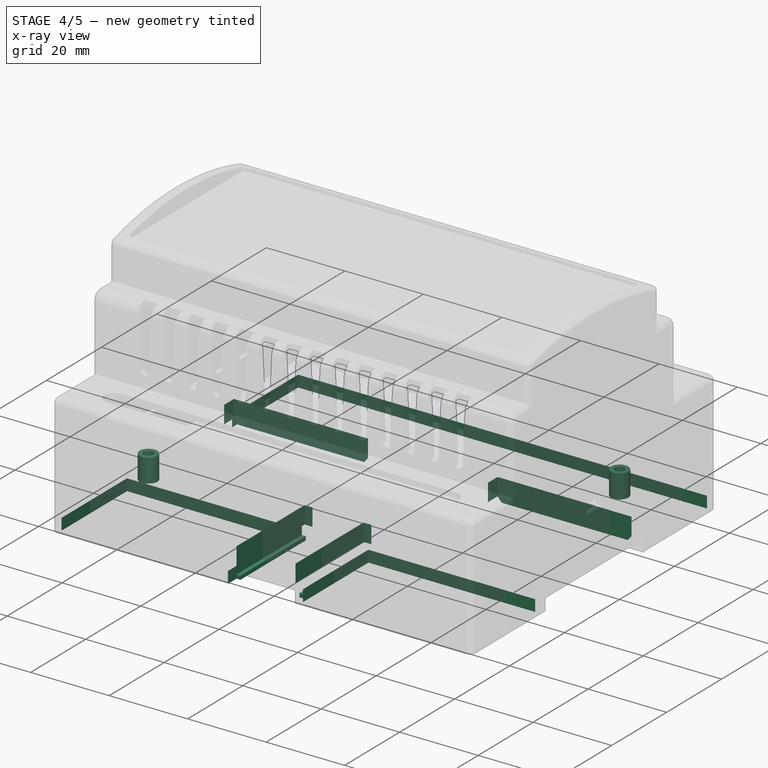
[diagram: stage 4 of 5 — x-ray composite at the iso view; earlier geometry ghosted, this stage's added geometry solid]
FEATURE [Sketcher::SketchObject] Sketch011
  ArcFitTolerance = 1e-06
  AttachmentSupport = -> [Pocket006]
  ExternalGeometry = -> [Pocket006]
  FullyConstrained = true
  MakeInternals = false
  MapMode = 5
  Placement = pos=(0,0,-11.4) rot=(1,0,0;3.14159rad)
  sketch-geometry (8):
    g0: LineSegment StartX=-50.65 StartY=-14.18 StartZ=0 EndX=-50.65 EndY=-17.75 EndZ=0
    g1: LineSegment StartX=-50.65 StartY=-17.75 StartZ=0 EndX=-16.5 EndY=-17.75 EndZ=0
    g2: LineSegment StartX=-16.5 StartY=-17.75 StartZ=0 EndX=-16.5 EndY=-14.18 EndZ=0
    g3: LineSegment StartX=-16.5 StartY=-14.18 StartZ=0 EndX=-50.65 EndY=-14.18 EndZ=0
    g4: LineSegment StartX=50.65 StartY=-14.18 StartZ=0 EndX=50.65 EndY=-17.75 EndZ=0
    g5: LineSegment StartX=50.65 StartY=-17.75 StartZ=0 EndX=16.5 EndY=-17.75 EndZ=0
    g6: LineSegment StartX=16.5 StartY=-17.75 StartZ=0 EndX=16.5 EndY=-14.18 EndZ=0
    g7: LineSegment StartX=16.5 StartY=-14.18 StartZ=0 EndX=50.65 EndY=-14.18 EndZ=0
  constraints (20):
    c: Coincident(g0,g1)
    c: Coincident(g1,g2)
    c: Coincident(g2,g3)
    c: Coincident(g3,g0)
    c: Vertical(g0)
    c: Vertical(g2)
    c: Horizontal(g1)
    c: Horizontal(g3)
    c: PointOnObject(g-4,g1)
    c: DistanceY(g-3,g0) = 1
    c: DistanceX(g0,g-3) = 1
    c: DistanceX(g-4,g2) = 1
    c: Symmetric(g0,g4,g-2)
    c: Symmetric(g0,g4,g-2)
    c: Symmetric(g1,g5,g-2)
    c: Symmetric(g1,g5,g-2)
    c: Symmetric(g2,g6,g-2)
    c: Symmetric(g2,g6,g-2)
    c: Symmetric(g3,g7,g-2)
    c: Symmetric(g3,g7,g-2)
FEATURE [PartDesign::Pocket] Pocket007
  BaseFeature = -> Pocket006
  Direction = (0,0,1)
  Length = 5
  Length2 = 5
  Profile = -> Sketch011
  ReferenceAxis = -> Sketch011 [N_Axis]
  Refine = true
  Suppressed = false
  Type = 0
FEATURE [Sketcher::SketchObject] Sketch012
  ArcFitTolerance = 1e-06
  AttachmentSupport = -> [Pocket007]
  ExternalGeometry = -> [Pocket007]
  FullyConstrained = true
  MakeInternals = false
  MapMode = 5
  Placement = pos=(0,-44.55,0) rot=(1,0,0;1.5708rad)
  sketch-geometry (8):
    g0: LineSegment StartX=-7.5 StartY=-14.4 StartZ=0 EndX=-7.5 EndY=-13.4 EndZ=0
    g1: LineSegment StartX=-7.5 StartY=-13.4 StartZ=0 EndX=-8.5 EndY=-13.4 EndZ=0
    g2: LineSegment StartX=-8.5 StartY=-13.4 StartZ=0 EndX=-8.5 EndY=-11.4 EndZ=0
    g3: LineSegment StartX=7.5 StartY=-14.4 StartZ=0 EndX=7.5 EndY=-13.4 EndZ=0
    g4: LineSegment StartX=7.5 StartY=-13.4 StartZ=0 EndX=8.5 EndY=-13.4 EndZ=0
    g5: LineSegment StartX=8.5 StartY=-13.4 StartZ=0 EndX=8.5 EndY=-11.4 EndZ=0
    g6: LineSegment StartX=-8.5 StartY=-11.4 StartZ=0 EndX=8.5 EndY=-11.4 EndZ=0
    g7: LineSegment StartX=-7.5 StartY=-14.4 StartZ=0 EndX=7.5 EndY=-14.4 EndZ=0
  constraints (22):
    c: Coincident(g6,g2)
    c: Coincident(g6,g5)
    c: Coincident(g7,g3)
    c: Coincident(g3,g4)
    c: Coincident(g4,g5)
    c: Coincident(g1,g2)
    c: Coincident(g0,g1)
    c: Symmetric(g5,g2,g-2)
    c: Horizontal(g4,g1)
    c: Vertical(g0)
    c: Horizontal(g1)
    c: Vertical(g2)
    c: Vertical(g5)
    c: Horizontal(g4)
    c: Vertical(g3)
    c: Symmetric(g0,g3,g-2)
    c: PointOnObject(g0,g-3)
    c: Distance(g5,g-3) = 3
    c: DistanceX(g1,g4) = 17
    c: Coincident(g7,g0)
    c: DistanceX(g1,g1) = 1
    c: DistanceY(g0,g0) = 1
FEATURE [PartDesign::Pocket] Pocket008
  BaseFeature = -> Pocket007
  Direction = (0,1,-2e-16)
  Length = 28
  Length2 = 5
  Profile = -> Sketch012
  ReferenceAxis = -> Sketch012 [N_Axis]
  Refine = true
  Suppressed = false
  Type = 0
FEATURE [Sketcher::SketchObject] Sketch013
  ArcFitTolerance = 1e-06
  AttachmentSupport = -> [Pocket008]
  ExternalGeometry = -> [Pocket008]
  FullyConstrained = true
  MakeInternals = false
  MapMode = 5
  Placement = pos=(0,0,-14.4) rot=(1,0,0;3.14159rad)
  sketch-geometry (4):
    g0: LineSegment StartX=8.5 StartY=44.55 StartZ=0 EndX=-8.5 EndY=44.55 EndZ=0
    g1: LineSegment StartX=-8.5 StartY=44.55 StartZ=0 EndX=-8.5 EndY=41.55 EndZ=0
    g2: LineSegment StartX=-8.5 StartY=41.55 StartZ=0 EndX=8.5 EndY=41.55 EndZ=0
    g3: LineSegment StartX=8.5 StartY=41.55 StartZ=0 EndX=8.5 EndY=44.55 EndZ=0
  constraints (11):
    c: Coincident(g0,g1)
    c: Coincident(g1,g2)
    c: Coincident(g2,g3)
    c: Coincident(g3,g0)
    c: Horizontal(g2)
    c: Vertical(g1)
    c: Vertical(g3)
    c: PointOnObject(g0,g-3)
    c: Symmetric(g0,g0,g-2)
    c: DistanceX(g0,g0) = 17
    c: DistanceY(g3,g3) = 3
FEATURE [PartDesign::Pocket] Pocket009
  BaseFeature = -> Pocket008
  Direction = (0,0,1)
  Length = 2
  Length2 = 5
  Profile = -> Sketch013
  ReferenceAxis = -> Sketch013 [N_Axis]
  Refine = true
  Suppressed = false
  Type = 0
FEATURE [Sketcher::SketchObject] Sketch014
  ArcFitTolerance = 1e-06
  AttachmentSupport = -> [Pocket009]
  ExternalGeometry = -> [Pocket009]
  FullyConstrained = true
  MakeInternals = false
  MapMode = 5
  Placement = pos=(0,0,-6.9) rot=(0,0,1;0rad)
  sketch-geometry (8):
    g0: LineSegment StartX=-8.5 StartY=-16.75 StartZ=0 EndX=-8.5 EndY=-41.55 EndZ=0
    g1: LineSegment StartX=-8.5 StartY=-41.55 StartZ=0 EndX=-6.5 EndY=-41.55 EndZ=0
    g2: LineSegment StartX=-6.5 StartY=-41.55 StartZ=0 EndX=-6.5 EndY=-16.75 EndZ=0
    g3: LineSegment StartX=-6.5 StartY=-16.75 StartZ=0 EndX=-8.5 EndY=-16.75 EndZ=0
    g4: LineSegment StartX=8.5 StartY=-16.75 StartZ=0 EndX=8.5 EndY=-41.55 EndZ=0
    g5: LineSegment StartX=8.5 StartY=-41.55 StartZ=0 EndX=6.5 EndY=-41.55 EndZ=0
    g6: LineSegment StartX=6.5 StartY=-41.55 StartZ=0 EndX=6.5 EndY=-16.75 EndZ=0
    g7: LineSegment StartX=6.5 StartY=-16.75 StartZ=0 EndX=8.5 EndY=-16.75 EndZ=0
  constraints (19):
    c: Coincident(g0,g1)
    c: Coincident(g1,g2)
    c: Coincident(g2,g3)
    c: Coincident(g3,g0)
    c: Vertical(g0)
    c: Vertical(g2)
    c: Horizontal(g1)
    c: Horizontal(g3)
    c: Coincident(g0,g-4)
    c: Distance(g-3,g3) = 1
    c: DistanceX(g-3,g2) = 1
    c: Symmetric(g0,g4,g-2)
    c: Symmetric(g0,g4,g-2)
    c: Symmetric(g1,g5,g-2)
    c: Symmetric(g1,g5,g-2)
    c: Symmetric(g2,g6,g-2)
    c: Symmetric(g2,g6,g-2)
    c: Symmetric(g3,g7,g-2)
    c: Symmetric(g3,g7,g-2)
FEATURE [PartDesign::Pocket] Pocket010
  BaseFeature = -> Pocket009
  Direction = (0,0,-1)
  Length = 5
  Length2 = 5
  Profile = -> Sketch014
  ReferenceAxis = -> Sketch014 [N_Axis]
  Refine = true
  Suppressed = false
  Type = 0
FEATURE [Sketcher::SketchObject] Sketch015
  ArcFitTolerance = 1e-06
  AttachmentSupport = -> [Pocket010]
  ExternalGeometry = -> [Pocket010]
  FullyConstrained = true
  MakeInternals = false
  MapMode = 5
  Placement = pos=(0,0,-14.4) rot=(1,0,0;3.14159rad)
  sketch-geometry (12):
    g0: LineSegment StartX=-52.1 StartY=-19.15 StartZ=0 EndX=-52.1 EndY=-43.15 EndZ=0
    g1: LineSegment StartX=-52.1 StartY=-43.15 StartZ=0 EndX=52.1 EndY=-43.15 EndZ=0
    g2: LineSegment StartX=52.1 StartY=-43.15 StartZ=0 EndX=52.1 EndY=-19.15 EndZ=0
    g3: LineSegment StartX=52.1 StartY=-19.15 StartZ=0 EndX=-52.1 EndY=-19.15 EndZ=0
    g4: LineSegment StartX=-9.5 StartY=19.25 StartZ=0 EndX=-9.5 EndY=43.05 EndZ=0
    g5: LineSegment StartX=-9.5 StartY=43.05 StartZ=0 EndX=-52 EndY=43.05 EndZ=0
    g6: LineSegment StartX=-52 StartY=43.05 StartZ=0 EndX=-52 EndY=19.25 EndZ=0
    g7: LineSegment StartX=-52 StartY=19.25 StartZ=0 EndX=-9.5 EndY=19.25 EndZ=0
    g8: LineSegment StartX=9.5 StartY=19.25 StartZ=0 EndX=9.5 EndY=43.05 EndZ=0
    g9: LineSegment StartX=9.5 StartY=43.05 StartZ=0 EndX=52 EndY=43.05 EndZ=0
    g10: LineSegment StartX=52 StartY=43.05 StartZ=0 EndX=52 EndY=19.25 EndZ=0
    g11: LineSegment StartX=52 StartY=19.25 StartZ=0 EndX=9.5 EndY=19.25 EndZ=0
  constraints (32):
    c: Coincident(g0,g1)
    c: Coincident(g1,g2)
    c: Coincident(g2,g3)
    c: Coincident(g3,g0)
    c: Vertical(g0)
    c: Vertical(g2)
    c: Horizontal(g1)
    c: Horizontal(g3)
    c: DistanceY(g2,g-5) = 1.4
    c: DistanceX(g2,g-5) = 1.4
    c: DistanceX(g-3,g0) = 1.4
    c: DistanceY(g-4,g1) = 1.4
    c: Coincident(g4,g5)
    c: Coincident(g5,g6)
    c: Coincident(g6,g7)
    c: Coincident(g7,g4)
    c: Vertical(g4)
    c: Vertical(g6)
    c: Horizontal(g5)
    c: Horizontal(g7)
    c: DistanceX(g4,g-6) = 2
    c: DistanceY(g-6,g4) = 1.5
    c: DistanceX(g-8,g6) = 1.5
    c: DistanceY(g4,g-7) = 1.5
    c: Symmetric(g4,g8,g-2)
    c: Symmetric(g4,g8,g-2)
    c: Symmetric(g5,g9,g-2)
    c: Symmetric(g5,g9,g-2)
    c: Symmetric(g6,g10,g-2)
    c: Symmetric(g6,g10,g-2)
    c: Symmetric(g7,g11,g-2)
    c: Symmetric(g7,g11,g-2)
FEATURE [PartDesign::Pocket] Pocket011
  BaseFeature = -> Pocket010
  Direction = (0,0,1)
  Length = 3
  Length2 = 5
  Profile = -> Sketch015
  ReferenceAxis = -> Sketch015 [N_Axis]
  Refine = true
  Suppressed = false
  Type = 0
FEATURE [Sketcher::SketchObject] Sketch016
  ArcFitTolerance = 1e-06
  AttachmentSupport = -> [Pocket011]
  FullyConstrained = true
  MakeInternals = false
  MapMode = 5
  Placement = pos=(0,0,-6.9) rot=(0,0,1;0rad)
  sketch-geometry (4):
    g0: Circle CenterX=42.5 CenterY=25 CenterZ=0 NormalX=0 NormalY=0 NormalZ=1 AngleXU=0 Radius=1.2
    g1: Circle CenterX=42.5 CenterY=25 CenterZ=0 NormalX=0 NormalY=0 NormalZ=1 AngleXU=0 Radius=2.25
    g2: Circle CenterX=-42.5 CenterY=-25 CenterZ=0 NormalX=0 NormalY=0 NormalZ=1 AngleXU=0 Radius=1.2
    g3: Circle CenterX=-42.5 CenterY=-25 CenterZ=0 NormalX=0 NormalY=0 NormalZ=1 AngleXU=0 Radius=2.25
  constraints (10):
    c: Diameter(g0) = 2.4
    c: Diameter(g1) = 4.5
    c: Coincident(g1,g0)
    c: Diameter(g2) = 2.4
    c: Diameter(g3) = 4.5
    c: Coincident(g3,g2)
    c: DistanceY(g-1,g0) = 25
    c: DistanceX(g-1,g0) = 42.5
    c: DistanceX(g2,g-1) = 42.5
    c: DistanceY(g2,g-1) = 25
FEATURE [PartDesign::Pad] Pad004
  BaseFeature = -> Pocket011
  Direction = (0,0,1)
  Length = 6
  Length2 = 10
  Profile = -> Sketch016
  ReferenceAxis = -> Sketch016 [N_Axis]
  Refine = true
  Suppressed = false
  Type = 0
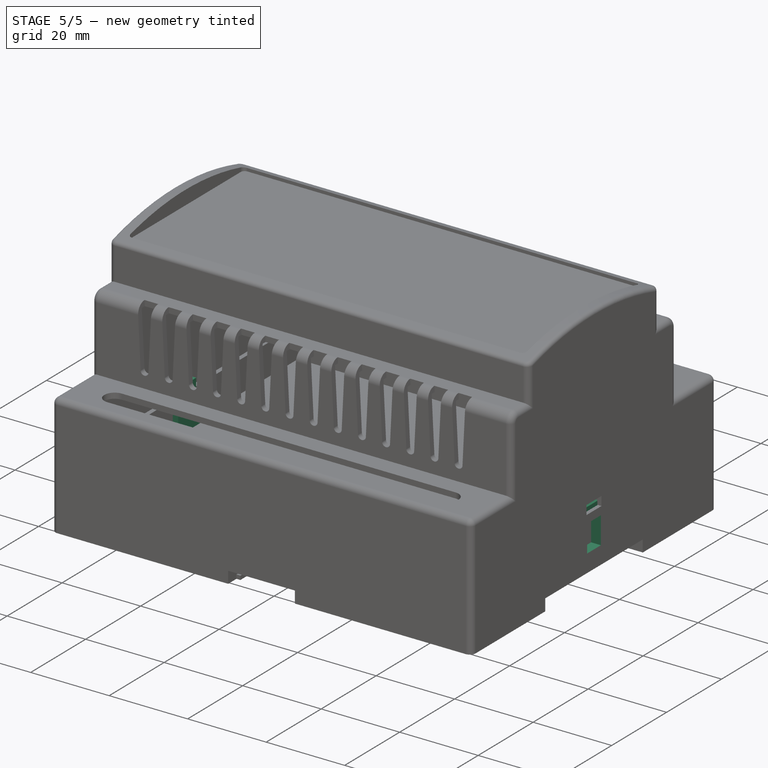
[diagram: stage 5 of 5 — iso view after this stage's code; geometry added in this stage tinted green]
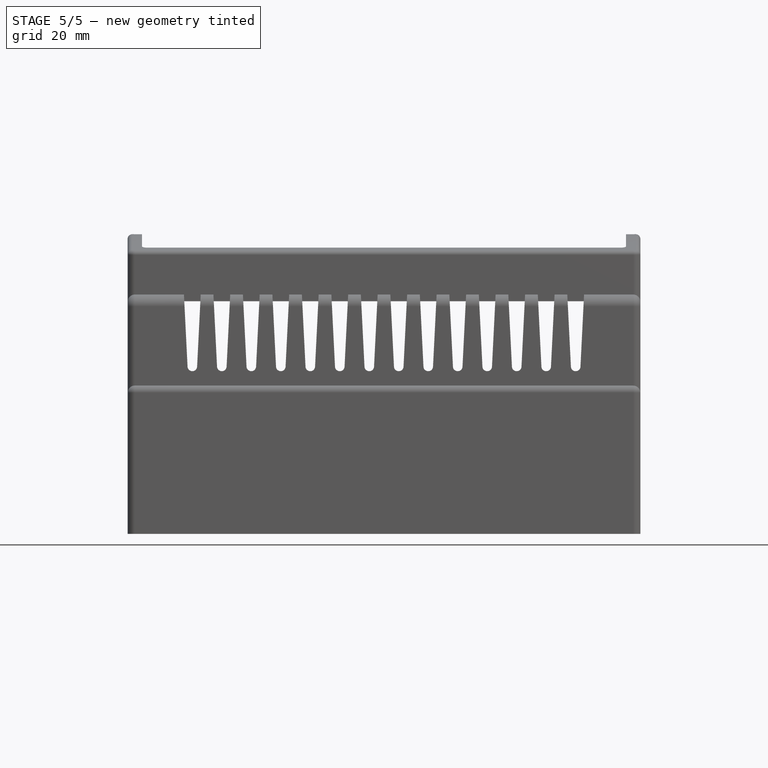
[diagram: stage 5 of 5 — front view after this stage's code; geometry added in this stage tinted green]
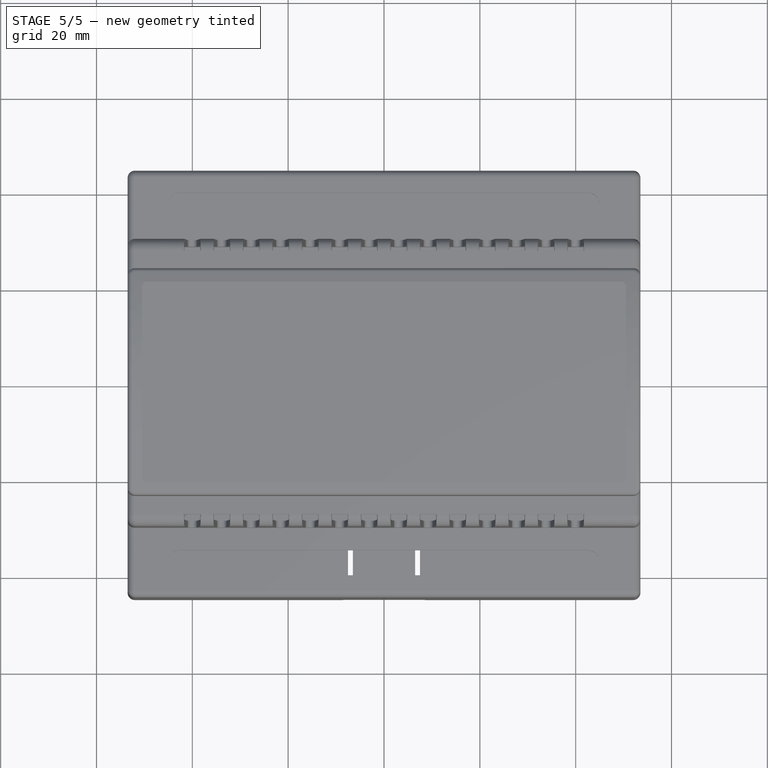
[diagram: stage 5 of 5 — top view after this stage's code; geometry added in this stage tinted green]
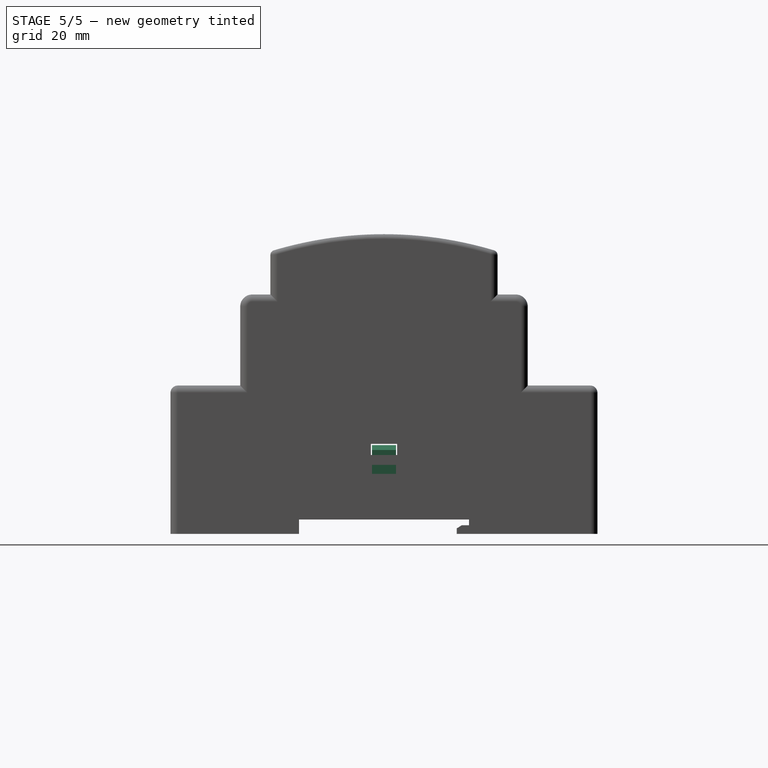
[diagram: stage 5 of 5 — right view after this stage's code; geometry added in this stage tinted green]
FEATURE [Sketcher::SketchObject] Sketch017
  ArcFitTolerance = 1e-06
  AttachmentSupport = -> [Pad004]
  ExternalGeometry = -> [Pad004]
  FullyConstrained = true
  MakeInternals = false
  MapMode = 5
  Placement = pos=(53.5,0,0) rot=(0.57735,0.57735,0.57735;2.0944rad)
  sketch-geometry (5):
    g0: LineSegment StartX=-2.5 StartY=6.9 StartZ=0 EndX=-2.5 EndY=-6.9 EndZ=0
    g1: LineSegment StartX=-2.5 StartY=-6.9 StartZ=0 EndX=2.5 EndY=-6.9 EndZ=0
    g2: LineSegment StartX=2.5 StartY=-6.9 StartZ=0 EndX=2.5 EndY=6.9 EndZ=0
    g3: LineSegment StartX=2.5 StartY=6.9 StartZ=0 EndX=-2.5 EndY=6.9 EndZ=0
    g4: GeomPoint [constr] X=0 Y=0 Z=0
  constraints (12):
    c: Coincident(g0,g1)
    c: Coincident(g1,g2)
    c: Coincident(g2,g3)
    c: Coincident(g3,g0)
    c: Vertical(g0)
    c: Vertical(g2)
    c: Horizontal(g1)
    c: Horizontal(g3)
    c: Symmetric(g2,g0,g4)
    c: Distance(g0,g2) = 5
    c: Coincident(g4,g-1)
    c: PointOnObject(g1,g-3)
FEATURE [PartDesign::Pocket] Pocket012
  BaseFeature = -> Pad004
  Direction = (-1,0,0)
  Length = 200
  Length2 = 5
  Profile = -> Sketch017
  ReferenceAxis = -> Sketch017 [N_Axis]
  Refine = true
  Suppressed = false
  Type = 0
FEATURE [Sketcher::SketchObject] Sketch018
  ArcFitTolerance = 1e-06
  AttachmentSupport = -> [Pocket012]
  ExternalGeometry = -> [Pocket012]
  FullyConstrained = true
  MakeInternals = false
  MapMode = 5
  Placement = pos=(51,0,0) rot=(0.57735,-0.57735,-0.57735;2.0944rad)
  sketch-geometry (9):
    g0: LineSegment StartX=0 StartY=-6.9 StartZ=0 EndX=4 EndY=-6.9 EndZ=0
    g1: LineSegment StartX=4 StartY=-6.9 StartZ=0 EndX=4 EndY=-1.9 EndZ=0
    g2: LineSegment StartX=4 StartY=-1.9 StartZ=0 EndX=2.5 EndY=-1.9 EndZ=0
    g3: LineSegment StartX=2.5 StartY=-1.9 StartZ=0 EndX=2.5 EndY=4.1 EndZ=0
    g4: LineSegment StartX=0 StartY=-6.9 StartZ=0 EndX=-4 EndY=-6.9 EndZ=0
    g5: LineSegment StartX=-4 StartY=-6.9 StartZ=0 EndX=-4 EndY=-1.9 EndZ=0
    g6: LineSegment StartX=-4 StartY=-1.9 StartZ=0 EndX=-2.5 EndY=-1.9 EndZ=0
    g7: LineSegment StartX=-2.5 StartY=-1.9 StartZ=0 EndX=-2.5 EndY=4.1 EndZ=0
    g8: LineSegment StartX=-2.5 StartY=4.1 StartZ=0 EndX=2.5 EndY=4.1 EndZ=0
  constraints (23):
    c: PointOnObject(g0,g-2)
    c: Horizontal(g0)
    c: Coincident(g0,g1)
    c: Vertical(g1)
    c: Coincident(g1,g2)
    c: Horizontal(g2)
    c: Coincident(g2,g3)
    c: DistanceY(g1,g1) = 5
    c: Symmetric(g0,g4,g-2)
    c: Symmetric(g1,g5,g-2)
    c: Symmetric(g1,g5,g-2)
    c: Symmetric(g2,g6,g-2)
    c: Symmetric(g2,g6,g-2)
    c: Symmetric(g3,g7,g-2)
    c: Symmetric(g3,g7,g-2)
    c: Coincident(g8,g7)
    c: Coincident(g8,g3)
    c: Coincident(g4,g0)
    c: DistanceX(g-1,g0) = 4
    c: DistanceX(g8,g8) = 5
    c: Vertical(g7)
    c: Horizontal(g-3,g0)
    c: DistanceY(g4,g7) = 11
FEATURE [PartDesign::Pad] Pad005
  BaseFeature = -> Pocket012
  Direction = (-1,0,0)
  Length = 1.4
  Length2 = 10
  Profile = -> Sketch018
  ReferenceAxis = -> Sketch018 [N_Axis]
  Refine = true
  Suppressed = false
  Type = 0
FEATURE [PartDesign::MultiTransform] MultiTransform001
  BaseFeature = -> Pad005
  Refine = true
  Suppressed = false
  TransformMode = 1
FEATURE [PartDesign::Mirrored] Mirrored001
  MirrorPlane = -> YZ_Plane001
  Refine = true
  Suppressed = false
  TransformMode = 0
FEATURE [PartDesign::MultiTransform] MultiTransform002
  BaseFeature = -> MultiTransform001
  Originals = -> [Pad005]
  Refine = true
  Suppressed = false
  TransformMode = 0
  Transformations = -> [Mirrored001]
FEATURE [Sketcher::SketchObject] Sketch019
  ArcFitTolerance = 1e-06
  AttachmentSupport = -> [MultiTransform002]
  ExternalGeometry = -> [MultiTransform002]
  FullyConstrained = true
  MakeInternals = false
  MapMode = 5
  Placement = pos=(0,-2.5,0) rot=(1,0,0;1.5708rad)
  sketch-geometry (5):
    g0: LineSegment StartX=49.6 StartY=4.1 StartZ=0 EndX=52.1 EndY=4.1 EndZ=0
    g1: LineSegment StartX=52.1 StartY=4.1 StartZ=0 EndX=53.1 EndY=3.1 EndZ=0
    g2: LineSegment StartX=53.1 StartY=3.1 StartZ=0 EndX=53.1 EndY=2.1 EndZ=0
    g3: LineSegment StartX=53.1 StartY=2.1 StartZ=0 EndX=49.6 EndY=2.1 EndZ=0
    g4: LineSegment StartX=49.6 StartY=2.1 StartZ=0 EndX=49.6 EndY=4.1 EndZ=0
  constraints (14):
    c: Coincident(g0,g-4)
    c: Horizontal(g0)
    c: Coincident(g0,g1)
    c: Coincident(g1,g2)
    c: Vertical(g2)
    c: Coincident(g2,g3)
    c: Horizontal(g3)
    c: Coincident(g3,g4)
    c: Coincident(g4,g0)
    c: Vertical(g4)
    c: DistanceY(g4,g4) = 2
    c: DistanceX(g0,g0) = 2.5
    c: DistanceY(g2,g2) = 1
    c: DistanceX(g3,g3) = 3.5
FEATURE [PartDesign::Pad] Pad006
  BaseFeature = -> MultiTransform002
  Direction = (0,-1,2e-16)
  Length = 5
  Length2 = 10
  Profile = -> Sketch019
  ReferenceAxis = -> Sketch019 [N_Axis]
  Refine = true
  Reversed = true
  Suppressed = false
  Type = 0
FEATURE [PartDesign::MultiTransform] MultiTransform003
  BaseFeature = -> Pad006
  Refine = true
  Suppressed = false
  TransformMode = 1
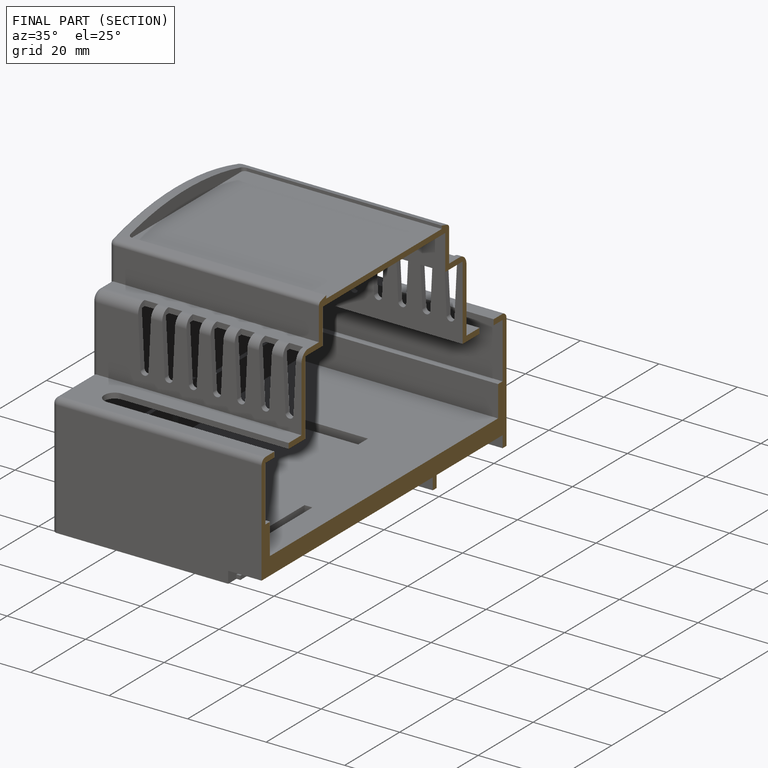
[diagram: finished part — half-section view (interior)]
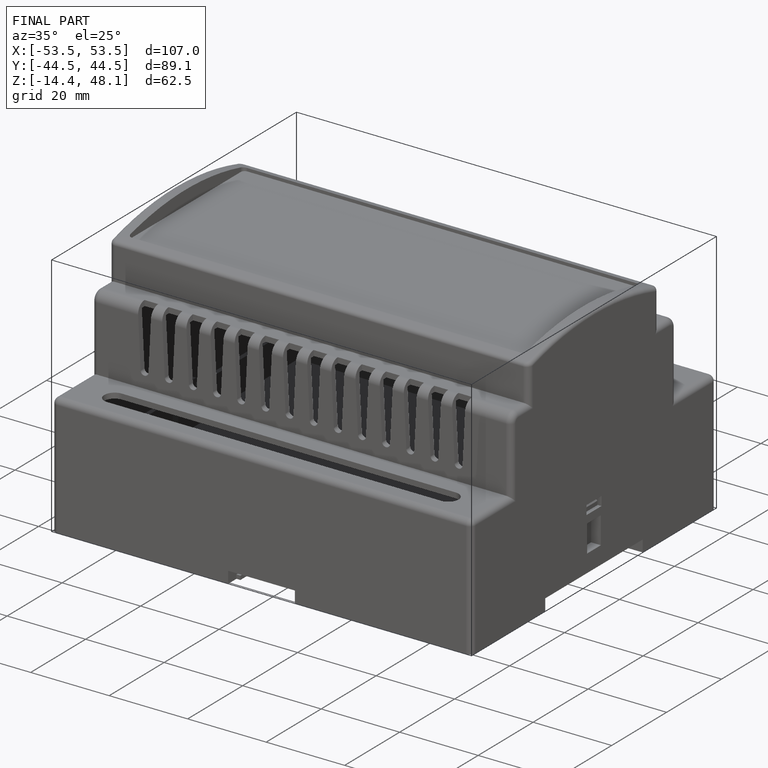
[diagram: finished part — iso view with bounding-box wireframe]
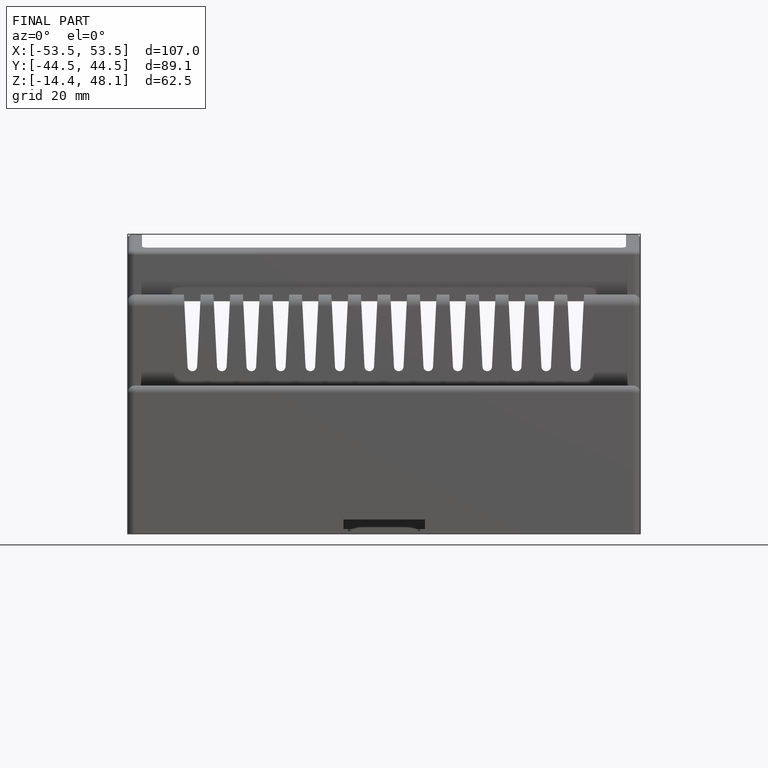
[diagram: finished part — front view with bounding-box wireframe]
